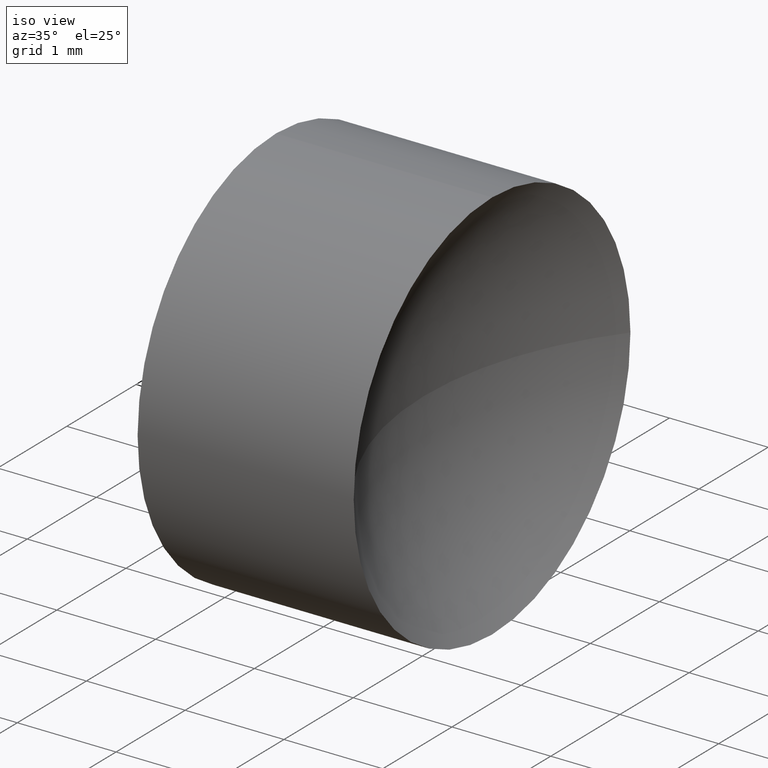
[diagram: clean part render]
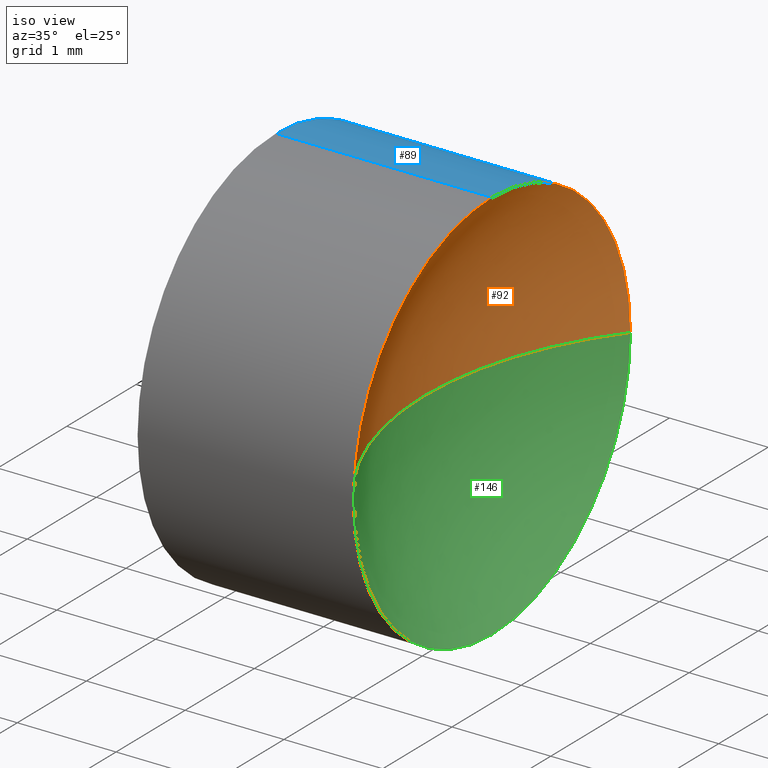
[diagram: same view with three faces highlighted in distinct colors, each labeled with its STEP entity id]
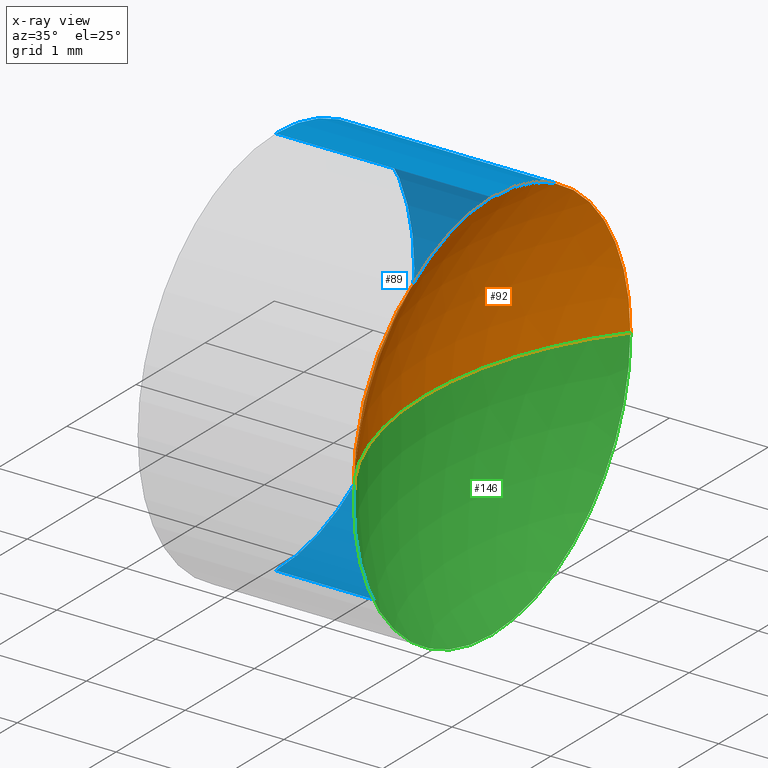
[diagram: x-ray of the same camera — body ghosted, the three highlighted faces saturated]
A machine part, iso view with three faces highlighted in distinct colors.
The next image is the same camera in x-ray (body ghosted, the three faces saturated) — at least one of them is partly hidden behind the body in this view.
Their STEP definitions:

[orange] entity #92 — the highlighted spherical surface has radius 3.25 mm.
#1 = DIRECTION ( 'NONE',  ( 0.0000000000000000000, 0.0000000000000000000, 1.000000000000000000 ) ) ;
#2 = VERTEX_POINT ( 'NONE', #105 ) ;
#3 = DIRECTION ( 'NONE',  ( -1.000000000000000000, 0.0000000000000000000, 0.0000000000000000000 ) ) ;
#10 = ORIENTED_EDGE ( 'NONE', *, *, #96, .F. ) ;
#27 = DIRECTION ( 'NONE',  ( 0.0000000000000000000, 0.0000000000000000000, 1.000000000000000000 ) ) ;
#32 = AXIS2_PLACEMENT_3D ( 'NONE', #154, #163, #3 ) ;
#43 = EDGE_LOOP ( 'NONE', ( #10, #156, #166, #159 ) ) ;
#51 = VERTEX_POINT ( 'NONE', #171 ) ;
#54 = EDGE_CURVE ( 'NONE', #51, #90, #119, .T. ) ;
#55 = AXIS2_PLACEMENT_3D ( 'NONE', #177, #1, #62 ) ;
#57 = EDGE_CURVE ( 'NONE', #81, #51, #115, .T. ) ;
#58 = CARTESIAN_POINT ( 'NONE',  ( 13.34525218437558500, 6.515563045701520100, 0.0000000000000000000 ) ) ;
#62 = DIRECTION ( 'NONE',  ( 0.0000000000000000000, -1.000000000000000000, 0.0000000000000000000 ) ) ;
#66 = CARTESIAN_POINT ( 'NONE',  ( 13.34525218437558500, 4.515563045701519200, 0.0000000000000000000 ) ) ;
#68 = EDGE_CURVE ( 'NONE', #81, #2, #179, .T. ) ;
#70 = AXIS2_PLACEMENT_3D ( 'NONE', #160, #135, #27 ) ;
#79 = CARTESIAN_POINT ( 'NONE',  ( 15.90698987586548400, 6.515563045701520100, 0.0000000000000000000 ) ) ;
#81 = VERTEX_POINT ( 'NONE', #66 ) ;
#90 = VERTEX_POINT ( 'NONE', #123 ) ;
#92 = ADVANCED_FACE ( 'NONE', ( #142 ), #111, .F. ) ;
#96 = EDGE_CURVE ( 'NONE', #90, #2, #101, .T. ) ;
#97 = DIRECTION ( 'NONE',  ( 0.0000000000000000000, -1.000000000000000000, -1.224646799147353200E-016 ) ) ;
#101 = CIRCLE ( 'NONE', #169, 3.249999999999999600 ) ;
#105 = CARTESIAN_POINT ( 'NONE',  ( 12.65698987586548400, 6.515563045701520100, 0.0000000000000000000 ) ) ;
#107 = DIRECTION ( 'NONE',  ( 0.0000000000000000000, 0.0000000000000000000, 1.000000000000000000 ) ) ;
#111 = SPHERICAL_SURFACE ( 'NONE', #55, 3.249999999999999600 ) ;
#115 = CIRCLE ( 'NONE', #134, 2.000000000000000900 ) ;
#119 = CIRCLE ( 'NONE', #70, 2.000000000000000900 ) ;
#121 = DIRECTION ( 'NONE',  ( -1.000000000000000000, -0.0000000000000000000, -0.0000000000000000000 ) ) ;
#123 = CARTESIAN_POINT ( 'NONE',  ( 13.34525218437558500, 8.515563045701521000, 2.449293598294707900E-016 ) ) ;
#134 = AXIS2_PLACEMENT_3D ( 'NONE', #58, #121, #107 ) ;
#135 = DIRECTION ( 'NONE',  ( -1.000000000000000000, -0.0000000000000000000, -0.0000000000000000000 ) ) ;
#142 = FACE_OUTER_BOUND ( 'NONE', #43, .T. ) ;
#151 = DIRECTION ( 'NONE',  ( 0.0000000000000000000, -1.224646799147353200E-016, 1.000000000000000000 ) ) ;
#154 = CARTESIAN_POINT ( 'NONE',  ( 15.90698987586548400, 6.515563045701520100, 0.0000000000000000000 ) ) ;
#156 = ORIENTED_EDGE ( 'NONE', *, *, #54, .F. ) ;
#159 = ORIENTED_EDGE ( 'NONE', *, *, #68, .T. ) ;
#160 = CARTESIAN_POINT ( 'NONE',  ( 13.34525218437558500, 6.515563045701520100, 0.0000000000000000000 ) ) ;
#163 = DIRECTION ( 'NONE',  ( 0.0000000000000000000, 0.0000000000000000000, -1.000000000000000000 ) ) ;
#166 = ORIENTED_EDGE ( 'NONE', *, *, #57, .F. ) ;
#169 = AXIS2_PLACEMENT_3D ( 'NONE', #79, #151, #97 ) ;
#171 = CARTESIAN_POINT ( 'NONE',  ( 13.34525218437558500, 6.515563045701520100, 2.000000000000000900 ) ) ;
#177 = CARTESIAN_POINT ( 'NONE',  ( 15.90698987586548400, 6.515563045701520100, 0.0000000000000000000 ) ) ;
#179 = CIRCLE ( 'NONE', #32, 3.249999999999999600 ) ;

[blue] entity #89 — the highlighted cylindrical surface (partial cylindrical patch) has radius 2 mm, axis along (-1, -0, -0).
#15 = VERTEX_POINT ( 'NONE', #60 ) ;
#20 = CARTESIAN_POINT ( 'NONE',  ( 13.34525218437558500, 6.515563045701520100, -2.000000000000000900 ) ) ;
#21 = FACE_OUTER_BOUND ( 'NONE', #117, .T. ) ;
#22 = AXIS2_PLACEMENT_3D ( 'NONE', #52, #122, #152 ) ;
#27 = DIRECTION ( 'NONE',  ( 0.0000000000000000000, 0.0000000000000000000, 1.000000000000000000 ) ) ;
#29 = CARTESIAN_POINT ( 'NONE',  ( 11.15698987586548600, 6.515563045701520100, 2.000000000000000900 ) ) ;
#31 = CYLINDRICAL_SURFACE ( 'NONE', #22, 2.000000000000000900 ) ;
#37 = EDGE_CURVE ( 'NONE', #90, #168, #182, .T. ) ;
#39 = VERTEX_POINT ( 'NONE', #29 ) ;
#42 = VECTOR ( 'NONE', #174, 1000.000000000000000 ) ;
#45 = CARTESIAN_POINT ( 'NONE',  ( 13.34525218437558500, 6.515563045701520100, 0.0000000000000000000 ) ) ;
#49 = DIRECTION ( 'NONE',  ( -1.000000000000000000, -0.0000000000000000000, -0.0000000000000000000 ) ) ;
#50 = CARTESIAN_POINT ( 'NONE',  ( 10.34201531756644400, 6.515563045701520100, 2.000000000000000900 ) ) ;
#51 = VERTEX_POINT ( 'NONE', #171 ) ;
#52 = CARTESIAN_POINT ( 'NONE',  ( 10.34201531756644400, 6.515563045701520100, 0.0000000000000000000 ) ) ;
#54 = EDGE_CURVE ( 'NONE', #51, #90, #119, .T. ) ;
#60 = CARTESIAN_POINT ( 'NONE',  ( 11.15698987586548600, 6.515563045701520100, -2.000000000000000900 ) ) ;
#69 = VECTOR ( 'NONE', #49, 1000.000000000000000 ) ;
#70 = AXIS2_PLACEMENT_3D ( 'NONE', #160, #135, #27 ) ;
#72 = ORIENTED_EDGE ( 'NONE', *, *, #37, .T. ) ;
#75 = DIRECTION ( 'NONE',  ( -1.000000000000000000, -0.0000000000000000000, -0.0000000000000000000 ) ) ;
#80 = CARTESIAN_POINT ( 'NONE',  ( 11.15698987586548600, 6.515563045701520100, 0.0000000000000000000 ) ) ;
#83 = ORIENTED_EDGE ( 'NONE', *, *, #183, .F. ) ;
#87 = EDGE_CURVE ( 'NONE', #39, #15, #175, .T. ) ;
#89 = ADVANCED_FACE ( 'NONE', ( #21 ), #31, .T. ) ;
#90 = VERTEX_POINT ( 'NONE', #123 ) ;
#109 = DIRECTION ( 'NONE',  ( -1.000000000000000000, -0.0000000000000000000, -0.0000000000000000000 ) ) ;
#117 = EDGE_LOOP ( 'NONE', ( #72, #148, #155, #83, #145 ) ) ;
#119 = CIRCLE ( 'NONE', #70, 2.000000000000000900 ) ;
#122 = DIRECTION ( 'NONE',  ( -1.000000000000000000, -0.0000000000000000000, -0.0000000000000000000 ) ) ;
#123 = CARTESIAN_POINT ( 'NONE',  ( 13.34525218437558500, 8.515563045701521000, 2.449293598294707900E-016 ) ) ;
#130 = LINE ( 'NONE', #50, #42 ) ;
#133 = AXIS2_PLACEMENT_3D ( 'NONE', #45, #75, #147 ) ;
#135 = DIRECTION ( 'NONE',  ( -1.000000000000000000, -0.0000000000000000000, -0.0000000000000000000 ) ) ;
#137 = LINE ( 'NONE', #165, #69 ) ;
#145 = ORIENTED_EDGE ( 'NONE', *, *, #54, .T. ) ;
#147 = DIRECTION ( 'NONE',  ( 0.0000000000000000000, 0.0000000000000000000, 1.000000000000000000 ) ) ;
#148 = ORIENTED_EDGE ( 'NONE', *, *, #181, .T. ) ;
#152 = DIRECTION ( 'NONE',  ( 0.0000000000000000000, 0.0000000000000000000, 1.000000000000000000 ) ) ;
#153 = DIRECTION ( 'NONE',  ( 0.0000000000000000000, 0.0000000000000000000, 1.000000000000000000 ) ) ;
#155 = ORIENTED_EDGE ( 'NONE', *, *, #87, .F. ) ;
#158 = AXIS2_PLACEMENT_3D ( 'NONE', #80, #109, #153 ) ;
#160 = CARTESIAN_POINT ( 'NONE',  ( 13.34525218437558500, 6.515563045701520100, 0.0000000000000000000 ) ) ;
#165 = CARTESIAN_POINT ( 'NONE',  ( 10.34201531756644400, 6.515563045701520100, -2.000000000000000900 ) ) ;
#168 = VERTEX_POINT ( 'NONE', #20 ) ;
#171 = CARTESIAN_POINT ( 'NONE',  ( 13.34525218437558500, 6.515563045701520100, 2.000000000000000900 ) ) ;
#174 = DIRECTION ( 'NONE',  ( -1.000000000000000000, -0.0000000000000000000, -0.0000000000000000000 ) ) ;
#175 = CIRCLE ( 'NONE', #158, 2.000000000000000900 ) ;
#181 = EDGE_CURVE ( 'NONE', #168, #15, #137, .T. ) ;
#182 = CIRCLE ( 'NONE', #133, 2.000000000000000900 ) ;
#183 = EDGE_CURVE ( 'NONE', #51, #39, #130, .T. ) ;

[green] entity #146 — the highlighted spherical surface has radius 3.25 mm.
#2 = VERTEX_POINT ( 'NONE', #105 ) ;
#3 = DIRECTION ( 'NONE',  ( -1.000000000000000000, 0.0000000000000000000, 0.0000000000000000000 ) ) ;
#8 = CIRCLE ( 'NONE', #64, 2.000000000000000900 ) ;
#9 = EDGE_CURVE ( 'NONE', #168, #81, #8, .T. ) ;
#20 = CARTESIAN_POINT ( 'NONE',  ( 13.34525218437558500, 6.515563045701520100, -2.000000000000000900 ) ) ;
#32 = AXIS2_PLACEMENT_3D ( 'NONE', #154, #163, #3 ) ;
#36 = EDGE_LOOP ( 'NONE', ( #86, #76, #46, #136 ) ) ;
#37 = EDGE_CURVE ( 'NONE', #90, #168, #182, .T. ) ;
#45 = CARTESIAN_POINT ( 'NONE',  ( 13.34525218437558500, 6.515563045701520100, 0.0000000000000000000 ) ) ;
#46 = ORIENTED_EDGE ( 'NONE', *, *, #68, .F. ) ;
#56 = FACE_OUTER_BOUND ( 'NONE', #36, .T. ) ;
#61 = CARTESIAN_POINT ( 'NONE',  ( 13.34525218437558500, 6.515563045701520100, 0.0000000000000000000 ) ) ;
#64 = AXIS2_PLACEMENT_3D ( 'NONE', #61, #162, #184 ) ;
#66 = CARTESIAN_POINT ( 'NONE',  ( 13.34525218437558500, 4.515563045701519200, 0.0000000000000000000 ) ) ;
#68 = EDGE_CURVE ( 'NONE', #81, #2, #179, .T. ) ;
#75 = DIRECTION ( 'NONE',  ( -1.000000000000000000, -0.0000000000000000000, -0.0000000000000000000 ) ) ;
#76 = ORIENTED_EDGE ( 'NONE', *, *, #96, .T. ) ;
#78 = CARTESIAN_POINT ( 'NONE',  ( 15.90698987586548400, 6.515563045701520100, 0.0000000000000000000 ) ) ;
#79 = CARTESIAN_POINT ( 'NONE',  ( 15.90698987586548400, 6.515563045701520100, 0.0000000000000000000 ) ) ;
#81 = VERTEX_POINT ( 'NONE', #66 ) ;
#86 = ORIENTED_EDGE ( 'NONE', *, *, #37, .F. ) ;
#90 = VERTEX_POINT ( 'NONE', #123 ) ;
#94 = DIRECTION ( 'NONE',  ( 0.0000000000000000000, -1.000000000000000000, 0.0000000000000000000 ) ) ;
#96 = EDGE_CURVE ( 'NONE', #90, #2, #101, .T. ) ;
#97 = DIRECTION ( 'NONE',  ( 0.0000000000000000000, -1.000000000000000000, -1.224646799147353200E-016 ) ) ;
#101 = CIRCLE ( 'NONE', #169, 3.249999999999999600 ) ;
#105 = CARTESIAN_POINT ( 'NONE',  ( 12.65698987586548400, 6.515563045701520100, 0.0000000000000000000 ) ) ;
#120 = AXIS2_PLACEMENT_3D ( 'NONE', #78, #150, #94 ) ;
#123 = CARTESIAN_POINT ( 'NONE',  ( 13.34525218437558500, 8.515563045701521000, 2.449293598294707900E-016 ) ) ;
#133 = AXIS2_PLACEMENT_3D ( 'NONE', #45, #75, #147 ) ;
#136 = ORIENTED_EDGE ( 'NONE', *, *, #9, .F. ) ;
#146 = ADVANCED_FACE ( 'NONE', ( #56 ), #170, .F. ) ;
#147 = DIRECTION ( 'NONE',  ( 0.0000000000000000000, 0.0000000000000000000, 1.000000000000000000 ) ) ;
#150 = DIRECTION ( 'NONE',  ( 0.0000000000000000000, 0.0000000000000000000, 1.000000000000000000 ) ) ;
#151 = DIRECTION ( 'NONE',  ( 0.0000000000000000000, -1.224646799147353200E-016, 1.000000000000000000 ) ) ;
#154 = CARTESIAN_POINT ( 'NONE',  ( 15.90698987586548400, 6.515563045701520100, 0.0000000000000000000 ) ) ;
#162 = DIRECTION ( 'NONE',  ( -1.000000000000000000, -0.0000000000000000000, -0.0000000000000000000 ) ) ;
#163 = DIRECTION ( 'NONE',  ( 0.0000000000000000000, 0.0000000000000000000, -1.000000000000000000 ) ) ;
#168 = VERTEX_POINT ( 'NONE', #20 ) ;
#169 = AXIS2_PLACEMENT_3D ( 'NONE', #79, #151, #97 ) ;
#170 = SPHERICAL_SURFACE ( 'NONE', #120, 3.249999999999999600 ) ;
#179 = CIRCLE ( 'NONE', #32, 3.249999999999999600 ) ;
#182 = CIRCLE ( 'NONE', #133, 2.000000000000000900 ) ;
#184 = DIRECTION ( 'NONE',  ( 0.0000000000000000000, 0.0000000000000000000, 1.000000000000000000 ) ) ;